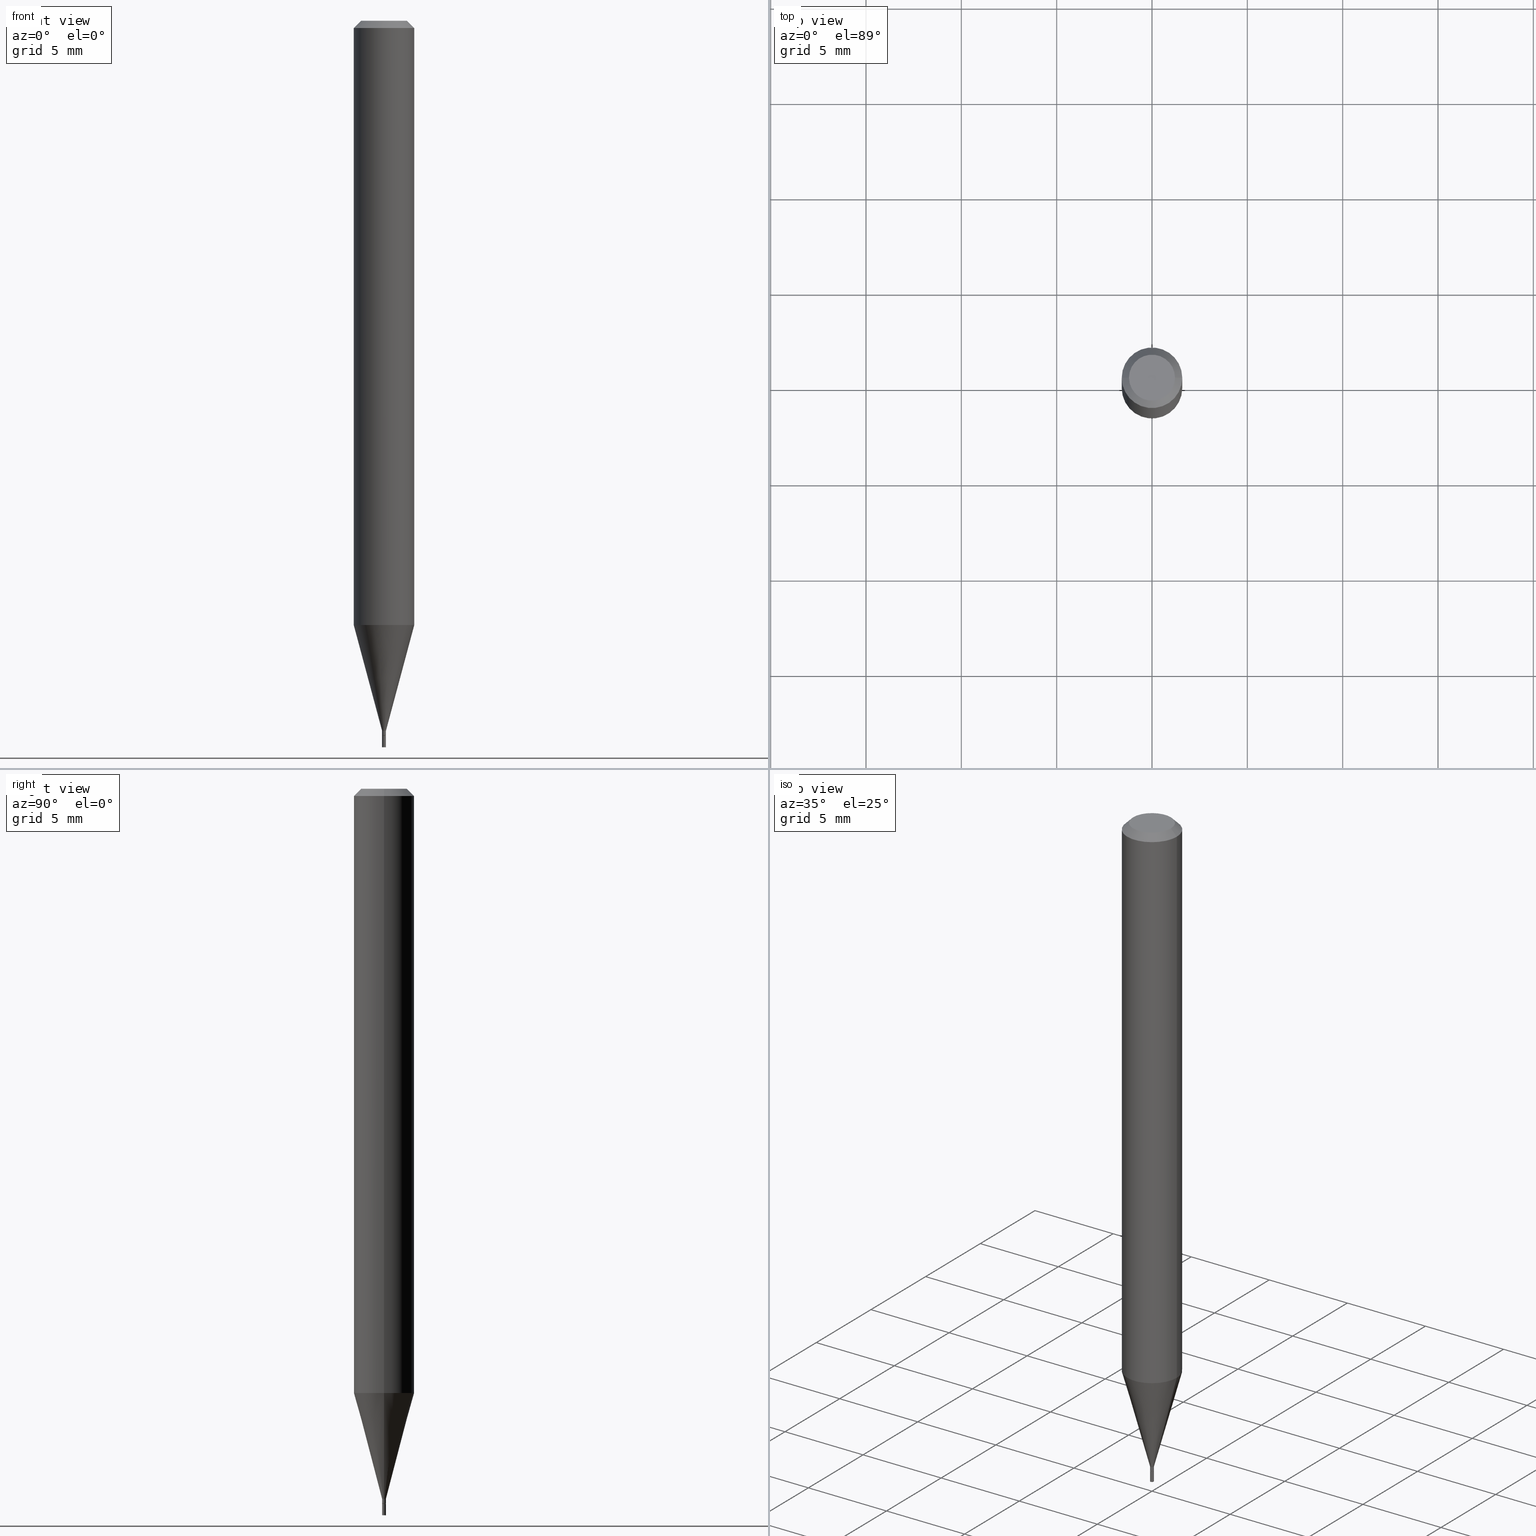
[diagram: canonical four-view strip — front | top / right | iso, engineering-drawing reading convention]
A machine part, canonical four-view strip (front | top / right | iso — engineering-drawing reading convention). The complete STEP part file that produces these views, byte-faithful:
ISO-10303-21;
HEADER;
FILE_DESCRIPTION (( 'STEP AP203' ),
    '1' );
FILE_NAME ('01159.STEP',
    '2024-03-19T23:29:55',
    ( '' ),
    ( '' ),
    'SwSTEP 2.0',
    'SolidWorks 2023',
    '' );
FILE_SCHEMA (( 'CONFIG_CONTROL_DESIGN' ));
ENDSEC;

DATA;
#1 = PLANE ( 'NONE',  #392 ) ;
#2 = DIRECTION ( 'NONE',  ( 1.000000000000000000, -6.982962677686267499E-15, 5.108144071313017768E-29 ) ) ;
#3 = ORIENTED_EDGE ( 'NONE', *, *, #244, .T. ) ;
#4 = VECTOR ( 'NONE', #389, 39.37007874015748143 ) ;
#5 = ORGANIZATION ( 'UNSPECIFIED', 'UNSPECIFIED', '' ) ;
#6 = PLANE ( 'NONE',  #154 ) ;
#7 = PRODUCT_DEFINITION_SHAPE ( 'NONE', 'NONE',  #227 ) ;
#8 = EDGE_LOOP ( 'NONE', ( #96, #397, #442, #454 ) ) ;
#9 = EDGE_CURVE ( 'NONE', #443, #170, #28, .T. ) ;
#10 = DIRECTION ( 'NONE',  ( 1.000000000000000000, -6.982962677686265922E-15, 4.876176775795935793E-29 ) ) ;
#11 = FACE_OUTER_BOUND ( 'NONE', #167, .T. ) ;
#12 = CARTESIAN_POINT ( 'NONE',  ( -0.003999999999999922888, 2.842170943040345952E-17, -1.967574036101924236E-31 ) ) ;
#13 = CARTESIAN_POINT ( 'NONE',  ( -0.003500000000000000507, -5.125908233206768515E-15, -1.475999999999999979 ) ) ;
#14 = ORIENTED_EDGE ( 'NONE', *, *, #81, .T. ) ;
#15 = APPROVAL_PERSON_ORGANIZATION ( #375, #460, #228 ) ;
#16 = CARTESIAN_POINT ( 'NONE',  ( 3.051150360636458226E-29, -4.356234076354940631E-15, -1.247675027757221056 ) ) ;
#17 = ORIENTED_EDGE ( 'NONE', *, *, #458, .F. ) ;
#18 = CARTESIAN_POINT ( 'NONE',  ( 0.000000000000000000, 0.000000000000000000, 0.000000000000000000 ) ) ;
#19 = PERSON_AND_ORGANIZATION ( #50, #5 ) ;
#20 = APPROVAL_PERSON_ORGANIZATION ( #19, #402, #381 ) ;
#21 = ORIENTED_EDGE ( 'NONE', *, *, #29, .T. ) ;
#22 = EDGE_CURVE ( 'NONE', #285, #286, #332, .T. ) ;
#23 = DATE_AND_TIME ( #420, #393 ) ;
#24 = ORIENTED_EDGE ( 'NONE', *, *, #445, .F. ) ;
#25 = DIRECTION ( 'NONE',  ( 1.000000000000000000, 0.000000000000000000, 0.000000000000000000 ) ) ;
#26 = CARTESIAN_POINT ( 'NONE',  ( 0.04749999999999999362, -4.035134999187603275E-16, -1.404502872476248897E-15 ) ) ;
#27 = CARTESIAN_POINT ( 'NONE',  ( 3.585057269867410650E-29, -5.118511642744051990E-15, -1.466000000000000192 ) ) ;
#28 = LINE ( 'NONE', #160, #30 ) ;
#29 = EDGE_CURVE ( 'NONE', #236, #191, #78, .T. ) ;
#30 = VECTOR ( 'NONE', #415, 39.37007874015748143 ) ;
#31 = ORIENTED_EDGE ( 'NONE', *, *, #164, .F. ) ;
#32 = APPROVAL_STATUS ( 'not_yet_approved' ) ;
#33 = LINE ( 'NONE', #466, #166 ) ;
#34 = CARTESIAN_POINT ( 'NONE',  ( 3.609511957929261635E-29, -5.153426456132482850E-15, -1.475999999999999979 ) ) ;
#35 = EDGE_LOOP ( 'NONE', ( #304, #353 ) ) ;
#36 = DIRECTION ( 'NONE',  ( 1.000000000000000000, -6.982962677686222534E-15, 0.000000000000000000 ) ) ;
#37 = ORIENTED_EDGE ( 'NONE', *, *, #56, .F. ) ;
#38 = DIRECTION ( 'NONE',  ( 1.000000000000000000, -6.982962677686265922E-15, 4.876176775795935793E-29 ) ) ;
#39 = CARTESIAN_POINT ( 'NONE',  ( 3.609511957929261635E-29, -5.153426456132482850E-15, -1.475999999999999979 ) ) ;
#40 = EDGE_LOOP ( 'NONE', ( #163, #385, #31, #148 ) ) ;
#41 = CIRCLE ( 'NONE', #370, 0.04749999999999999362 ) ;
#42 = VECTOR ( 'NONE', #446, 39.37007874015748143 ) ;
#43 = DIRECTION ( 'NONE',  ( -2.445468806185136877E-29, 3.491481338843145188E-15, 1.000000000000000000 ) ) ;
#44 = CARTESIAN_POINT ( 'NONE',  ( 0.000000000000000000, 0.000000000000000000, 0.000000000000000000 ) ) ;
#45 = DIRECTION ( 'NONE',  ( -2.445468806185136877E-29, 3.491481338843145188E-15, 1.000000000000000000 ) ) ;
#46 = ORIENTED_EDGE ( 'NONE', *, *, #274, .F. ) ;
#47 = CYLINDRICAL_SURFACE ( 'NONE', #133, 0.06250000000000000000 ) ;
#48 = AXIS2_PLACEMENT_3D ( 'NONE', #310, #165, #198 ) ;
#49 = DIRECTION ( 'NONE',  ( -2.445468806185136597E-29, 3.491481338843145583E-15, 1.000000000000000000 ) ) ;
#50 = PERSON ( 'UNSPECIFIED', 'UNSPECIFIED', 'UNSPECIFIED', ('UNSPECIFIED'), ('UNSPECIFIED'), ('UNSPECIFIED') ) ;
#51 = DIRECTION ( 'NONE',  ( -2.445468806185136877E-29, 3.491481338843145188E-15, 1.000000000000000000 ) ) ;
#52 = EDGE_CURVE ( 'NONE', #179, #205, #263, .T. ) ;
#53 = CIRCLE ( 'NONE', #294, 0.004000000000000000083 ) ;
#54 = CONICAL_SURFACE ( 'NONE', #308, 0.003500000000000000507, 0.7853981633974723708 ) ;
#55 = SHAPE_DEFINITION_REPRESENTATION ( #7, #226 ) ;
#56 = EDGE_CURVE ( 'NONE', #443, #362, #120, .T. ) ;
#57 = ORIENTED_EDGE ( 'NONE', *, *, #81, .F. ) ;
#58 = CALENDAR_DATE ( 2024, 19, 3 ) ;
#59 = AXIS2_PLACEMENT_3D ( 'NONE', #354, #314, #242 ) ;
#60 = LOCAL_TIME ( 19, 29, 55.00000000000000000, #187 ) ;
#61 = DIRECTION ( 'NONE',  ( 1.000000000000000000, -6.982962677686266711E-15, 0.000000000000000000 ) ) ;
#62 = ADVANCED_FACE ( 'NONE', ( #422 ), #230, .T. ) ;
#63 = DIRECTION ( 'NONE',  ( -1.000000000000000000, 6.982962677686265922E-15, -4.876176775795935793E-29 ) ) ;
#64 = CIRCLE ( 'NONE', #101, 0.04749999999999999362 ) ;
#65 = AXIS2_PLACEMENT_3D ( 'NONE', #105, #207, #36 ) ;
#66 = FACE_OUTER_BOUND ( 'NONE', #432, .T. ) ;
#67 = ORIENTED_EDGE ( 'NONE', *, *, #423, .T. ) ;
#68 = EDGE_CURVE ( 'NONE', #205, #236, #428, .T. ) ;
#69 = DIRECTION ( 'NONE',  ( -2.445468806185136597E-29, 3.491481338843145583E-15, 1.000000000000000000 ) ) ;
#70 = ORIENTED_EDGE ( 'NONE', *, *, #119, .F. ) ;
#71 = CARTESIAN_POINT ( 'NONE',  ( 0.06250000000000000000, -4.811533449433679005E-16, -0.01499999999999999944 ) ) ;
#72 = FACE_OUTER_BOUND ( 'NONE', #282, .T. ) ;
#73 = PRODUCT_DEFINITION_FORMATION_WITH_SPECIFIED_SOURCE ( 'ANY', '', #180, .NOT_KNOWN. ) ;
#74 = ORIENTED_EDGE ( 'NONE', *, *, #52, .T. ) ;
#75 = CARTESIAN_POINT ( 'NONE',  ( 0.000000000000000000, 0.000000000000000000, 0.000000000000000000 ) ) ;
#76 = ADVANCED_FACE ( 'NONE', ( #72 ), #181, .T. ) ;
#77 = LINE ( 'NONE', #83, #93 ) ;
#78 = CIRCLE ( 'NONE', #418, 0.06250000000000000000 ) ;
#79 = CARTESIAN_POINT ( 'NONE',  ( 3.608289223526169394E-29, -5.151680715463062135E-15, -1.475500000000000256 ) ) ;
#80 = DIRECTION ( 'NONE',  ( 1.000000000000000000, -6.982962677686266711E-15, 0.000000000000000000 ) ) ;
#81 = EDGE_CURVE ( 'NONE', #126, #404, #64, .T. ) ;
#82 = DIRECTION ( 'NONE',  ( 1.000000000000000000, -6.982962677686192558E-15, 0.000000000000000000 ) ) ;
#83 = CARTESIAN_POINT ( 'NONE',  ( 0.003500000000000000507, -5.177866825504383900E-15, -1.475999999999999979 ) ) ;
#84 = COORDINATED_UNIVERSAL_TIME_OFFSET ( 5, 0, .BEHIND. ) ;
#85 = DIRECTION ( 'NONE',  ( -2.445468806185136597E-29, 3.491481338843145583E-15, 1.000000000000000000 ) ) ;
#86 = PERSON_AND_ORGANIZATION_ROLE ( 'design_owner' ) ;
#87 = LOCAL_TIME ( 19, 29, 55.00000000000000000, #378 ) ;
#88 = EDGE_CURVE ( 'NONE', #404, #191, #215, .T. ) ;
#89 = DIRECTION ( 'NONE',  ( 2.438088387897960049E-29, -3.491481338843145188E-15, -1.000000000000000000 ) ) ;
#90 = ORIENTED_EDGE ( 'NONE', *, *, #267, .T. ) ;
#91 = PERSON_AND_ORGANIZATION_ROLE ( 'creator' ) ;
#92 = CONICAL_SURFACE ( 'NONE', #333, 0.003999999999999922021, 0.2617993877991499074 ) ;
#93 = VECTOR ( 'NONE', #212, 39.37007874015748143 ) ;
#94 = ADVANCED_FACE ( 'NONE', ( #449 ), #143, .T. ) ;
#95 = CARTESIAN_POINT ( 'NONE',  ( -0.004000000000000000083, 2.842170943040400803E-17, -1.967574036101962334E-31 ) ) ;
#96 = ORIENTED_EDGE ( 'NONE', *, *, #119, .T. ) ;
#97 = DIRECTION ( 'NONE',  ( -2.438088387897960049E-29, 3.491481338843145188E-15, 1.000000000000000000 ) ) ;
#98 = ORIENTED_EDGE ( 'NONE', *, *, #220, .F. ) ;
#99 = CARTESIAN_POINT ( 'NONE',  ( 3.434667962838094334E-44, -4.903795569602426839E-30, -1.404502872476251461E-15 ) ) ;
#100 = DIRECTION ( 'NONE',  ( -2.445468806185136597E-29, 3.491481338843145583E-15, 1.000000000000000000 ) ) ;
#101 = AXIS2_PLACEMENT_3D ( 'NONE', #99, #152, #186 ) ;
#102 = ADVANCED_FACE ( 'NONE', ( #11 ), #107, .F. ) ;
#103 = CC_DESIGN_SECURITY_CLASSIFICATION ( #146, ( #73 ) ) ;
#104 = DIRECTION ( 'NONE',  ( -2.445468806185136597E-29, 3.491481338843145583E-15, 1.000000000000000000 ) ) ;
#105 = CARTESIAN_POINT ( 'NONE',  ( 3.608289223526169394E-29, -5.151680715463062135E-15, -1.475500000000000256 ) ) ;
#106 = ORIENTED_EDGE ( 'NONE', *, *, #9, .T. ) ;
#107 = PLANE ( 'NONE',  #463 ) ;
#108 = LENGTH_MEASURE_WITH_UNIT ( LENGTH_MEASURE( 0.02539999999999999897 ), #439 );
#109 = ORIENTED_EDGE ( 'NONE', *, *, #201, .T. ) ;
#110 = VECTOR ( 'NONE', #363, 39.37007874015748143 ) ;
#111 = VECTOR ( 'NONE', #45, 39.37007874015748143 ) ;
#112 = CC_DESIGN_PERSON_AND_ORGANIZATION_ASSIGNMENT ( #192, #296, ( #73 ) ) ;
#113 = DIRECTION ( 'NONE',  ( -2.445468806185136597E-29, 3.491481338843145583E-15, 1.000000000000000000 ) ) ;
#114 = EDGE_LOOP ( 'NONE', ( #46, #377, #247, #144 ) ) ;
#115 = ORIENTED_EDGE ( 'NONE', *, *, #299, .T. ) ;
#116 = DIRECTION ( 'NONE',  ( 1.000000000000000000, -6.982962677686222534E-15, 0.000000000000000000 ) ) ;
#117 = CARTESIAN_POINT ( 'NONE',  ( 0.000000000000000000, 0.000000000000000000, 0.000000000000000000 ) ) ;
#118 = DIRECTION ( 'NONE',  ( -0.7071067811865806574, 2.468850131082604554E-15, -0.7071067811865142660 ) ) ;
#119 = EDGE_CURVE ( 'NONE', #179, #276, #316, .T. ) ;
#120 = CIRCLE ( 'NONE', #131, 0.003500000000000000507 ) ;
#121 = DIRECTION ( 'NONE',  ( 2.445468806185136597E-29, -3.491481338843145583E-15, -1.000000000000000000 ) ) ;
#122 = DIRECTION ( 'NONE',  ( 0.000000000000000000, 0.000000000000000000, 1.000000000000000000 ) ) ;
#123 = DATE_AND_TIME ( #452, #60 ) ;
#124 = AXIS2_PLACEMENT_3D ( 'NONE', #335, #156, #82 ) ;
#125 = EDGE_CURVE ( 'NONE', #205, #430, #153, .T. ) ;
#126 = VERTEX_POINT ( 'NONE', #26 ) ;
#127 = DIRECTION ( 'NONE',  ( 1.000000000000000000, -6.982962677686192558E-15, 0.000000000000000000 ) ) ;
#128 = DATE_AND_TIME ( #219, #200 ) ;
#129 = ORIENTED_EDGE ( 'NONE', *, *, #9, .F. ) ;
#130 = ADVANCED_FACE ( 'NONE', ( #189 ), #221, .T. ) ;
#131 = AXIS2_PLACEMENT_3D ( 'NONE', #334, #350, #127 ) ;
#132 = LINE ( 'NONE', #71, #161 ) ;
#133 = AXIS2_PLACEMENT_3D ( 'NONE', #75, #255, #284 ) ;
#134 = CYLINDRICAL_SURFACE ( 'NONE', #411, 0.004000000000000000083 ) ;
#135 = ADVANCED_FACE ( 'NONE', ( #388 ), #369, .T. ) ;
#136 = FACE_OUTER_BOUND ( 'NONE', #403, .T. ) ;
#137 = CARTESIAN_POINT ( 'NONE',  ( 0.06250000000000000000, -4.888073874380388472E-16, -0.01499999999999999944 ) ) ;
#138 = AXIS2_PLACEMENT_3D ( 'NONE', #431, #351, #281 ) ;
#139 = CARTESIAN_POINT ( 'NONE',  ( 3.585057269867410650E-29, -5.118511642744051990E-15, -1.466000000000000192 ) ) ;
#140 = EDGE_LOOP ( 'NONE', ( #57, #115, #21, #322 ) ) ;
#141 = DIRECTION ( 'NONE',  ( -2.445468806185136597E-29, 3.491481338843145583E-15, 1.000000000000000000 ) ) ;
#142 = CC_DESIGN_PERSON_AND_ORGANIZATION_ASSIGNMENT ( #346, #91, ( #227 ) ) ;
#143 = CYLINDRICAL_SURFACE ( 'NONE', #434, 0.003999999999999922888 ) ;
#144 = ORIENTED_EDGE ( 'NONE', *, *, #201, .F. ) ;
#145 = CLOSED_SHELL ( 'NONE', ( #94, #130, #196, #349, #211, #135, #62, #358, #102, #177, #324, #76 ) ) ;
#146 = SECURITY_CLASSIFICATION ( '', '', #455 ) ;
#147 =( NAMED_UNIT ( * ) SI_UNIT ( $, .STERADIAN. ) SOLID_ANGLE_UNIT ( ) );
#148 = ORIENTED_EDGE ( 'NONE', *, *, #384, .F. ) ;
#149 = APPLICATION_PROTOCOL_DEFINITION ( 'international standard', 'config_control_design', 1994, #271 ) ;
#150 = CARTESIAN_POINT ( 'NONE',  ( -0.06250000000000000000, 3.840629472727444916E-16, -0.01499999999999999944 ) ) ;
#151 = EDGE_CURVE ( 'NONE', #286, #285, #249, .T. ) ;
#152 = DIRECTION ( 'NONE',  ( -2.445468806185136597E-29, 3.491481338843145583E-15, 1.000000000000000000 ) ) ;
#153 = CIRCLE ( 'NONE', #279, 0.06250000000000000000 ) ;
#154 = AXIS2_PLACEMENT_3D ( 'NONE', #237, #280, #63 ) ;
#155 = DATE_TIME_ROLE ( 'creation_date' ) ;
#156 = DIRECTION ( 'NONE',  ( -2.445468806185136597E-29, 3.491481338843145583E-15, 1.000000000000000000 ) ) ;
#157 = CARTESIAN_POINT ( 'NONE',  ( 3.668203209277704895E-29, -5.237222008264718177E-15, -1.500000000000000222 ) ) ;
#158 = MANIFOLD_SOLID_BREP ( 'Body-Move/Copy2[2]', #145 ) ;
#159 = PERSON_AND_ORGANIZATION_ROLE ( 'design_supplier' ) ;
#160 = CARTESIAN_POINT ( 'NONE',  ( -0.003500000000000000507, -5.128557460380878927E-15, -1.475999999999999979 ) ) ;
#161 = VECTOR ( 'NONE', #204, 39.37007874015748854 ) ;
#162 = APPROVAL_DATE_TIME ( #414, #190 ) ;
#163 = ORIENTED_EDGE ( 'NONE', *, *, #151, .T. ) ;
#164 = EDGE_CURVE ( 'NONE', #288, #313, #53, .T. ) ;
#165 = DIRECTION ( 'NONE',  ( 2.445468806185136597E-29, -3.491481338843145583E-15, -1.000000000000000000 ) ) ;
#166 = VECTOR ( 'NONE', #43, 39.37007874015748143 ) ;
#167 = EDGE_LOOP ( 'NONE', ( #425, #14 ) ) ;
#168 = ADVANCED_FACE ( 'NONE', ( #357 ), #413, .F. ) ;
#169 = CARTESIAN_POINT ( 'NONE',  ( -0.004000000000000000083, -5.166902522768196481E-15, -1.500000000000000222 ) ) ;
#170 = VERTEX_POINT ( 'NONE', #386 ) ;
#171 = DESIGN_CONTEXT ( 'detailed design', #410, 'design' ) ;
#172 = DIRECTION ( 'NONE',  ( 1.000000000000000000, -6.982962677686225690E-15, 0.000000000000000000 ) ) ;
#173 = FACE_OUTER_BOUND ( 'NONE', #8, .T. ) ;
#174 = AXIS2_PLACEMENT_3D ( 'NONE', #235, #275, #61 ) ;
#175 = CONICAL_SURFACE ( 'NONE', #232, 0.06250000000000000000, 0.7853981633974952414 ) ;
#176 = DIRECTION ( 'NONE',  ( -2.445468806185136597E-29, 3.491481338843145583E-15, 1.000000000000000000 ) ) ;
#177 = ADVANCED_FACE ( 'NONE', ( #66 ), #1, .F. ) ;
#178 = CARTESIAN_POINT ( 'NONE',  ( 0.003999999999999922888, -2.793185071074452549E-17, 1.950470710318336640E-31 ) ) ;
#179 = VERTEX_POINT ( 'NONE', #394 ) ;
#180 = PRODUCT ( '01159', '01159', '', ( #336 ) ) ;
#181 = CYLINDRICAL_SURFACE ( 'NONE', #188, 0.003999999999999922888 ) ;
#182 = CYLINDRICAL_SURFACE ( 'NONE', #295, 0.004000000000000000083 ) ;
#183 = ORIENTED_EDGE ( 'NONE', *, *, #384, .T. ) ;
#184 = CIRCLE ( 'NONE', #174, 0.06250000000000000000 ) ;
#185 = EDGE_CURVE ( 'NONE', #285, #313, #429, .T. ) ;
#186 = DIRECTION ( 'NONE',  ( 1.000000000000000000, -6.982962677686267499E-15, 5.108144071313017768E-29 ) ) ;
#187 = COORDINATED_UNIVERSAL_TIME_OFFSET ( 5, 0, .BEHIND. ) ;
#188 = AXIS2_PLACEMENT_3D ( 'NONE', #323, #319, #10 ) ;
#189 = FACE_OUTER_BOUND ( 'NONE', #395, .T. ) ;
#190 = APPROVAL ( #32, 'UNSPECIFIED' ) ;
#191 = VERTEX_POINT ( 'NONE', #433 ) ;
#192 = PERSON_AND_ORGANIZATION ( #50, #5 ) ;
#193 = VERTEX_POINT ( 'NONE', #277 ) ;
#194 = AXIS2_PLACEMENT_3D ( 'NONE', #347, #303, #233 ) ;
#195 = APPROVAL_STATUS ( 'not_yet_approved' ) ;
#196 = ADVANCED_FACE ( 'NONE', ( #202 ), #239, .T. ) ;
#197 = AXIS2_PLACEMENT_3D ( 'NONE', #18, #122, #25 ) ;
#198 = DIRECTION ( 'NONE',  ( -1.000000000000000000, 6.982962677686266711E-15, 0.000000000000000000 ) ) ;
#199 = DIRECTION ( 'NONE',  ( 1.000000000000000000, -6.982962677686266711E-15, 4.876176775795935793E-29 ) ) ;
#200 = LOCAL_TIME ( 19, 29, 55.00000000000000000, #84 ) ;
#201 = EDGE_CURVE ( 'NONE', #191, #236, #184, .T. ) ;
#202 = FACE_OUTER_BOUND ( 'NONE', #140, .T. ) ;
#203 = UNCERTAINTY_MEASURE_WITH_UNIT (LENGTH_MEASURE( 1.000000000000000082E-05 ), #321, 'distance_accuracy_value', 'NONE');
#204 = DIRECTION ( 'NONE',  ( 0.7071067811865806574, -7.319954787623366486E-15, -0.7071067811865142660 ) ) ;
#205 = VERTEX_POINT ( 'NONE', #356 ) ;
#206 = DIRECTION ( 'NONE',  ( 1.000000000000000000, -6.982962677686265922E-15, 4.876176775795935793E-29 ) ) ;
#207 = DIRECTION ( 'NONE',  ( -2.445468806185136597E-29, 3.491481338843145583E-15, 1.000000000000000000 ) ) ;
#208 = EDGE_LOOP ( 'NONE', ( #3, #67, #70, #24 ) ) ;
#209 = FACE_OUTER_BOUND ( 'NONE', #40, .T. ) ;
#210 = LINE ( 'NONE', #412, #42 ) ;
#211 = ADVANCED_FACE ( 'NONE', ( #173 ), #92, .T. ) ;
#212 = DIRECTION ( 'NONE',  ( 0.7071067811865645591, -2.468850131082435343E-15, 0.7071067811865304753 ) ) ;
#213 = VECTOR ( 'NONE', #51, 39.37007874015748143 ) ;
#214 = DIRECTION ( 'NONE',  ( 1.000000000000000000, -6.982962677686332975E-15, 0.000000000000000000 ) ) ;
#215 = LINE ( 'NONE', #150, #400 ) ;
#216 = DIRECTION ( 'NONE',  ( 0.2588190451025211836, 1.565188264969622559E-15, 0.9659258262890679791 ) ) ;
#217 = CARTESIAN_POINT ( 'NONE',  ( 3.668203209277705088E-31, -5.237222008264718399E-17, -0.01499999999999999944 ) ) ;
#218 = DIRECTION ( 'NONE',  ( 1.000000000000000000, -6.982962677686332975E-15, 0.000000000000000000 ) ) ;
#219 = CALENDAR_DATE ( 2024, 19, 3 ) ;
#220 = EDGE_CURVE ( 'NONE', #404, #126, #41, .T. ) ;
#221 = CONICAL_SURFACE ( 'NONE', #124, 0.003500000000000000507, 0.7853981633974723708 ) ;
#222 = APPROVAL_PERSON_ORGANIZATION ( #459, #190, #223 ) ;
#223 = APPROVAL_ROLE ( '' ) ;
#224 = DIRECTION ( 'NONE',  ( -1.000000000000000000, 6.982962677686265922E-15, -4.876176775795935793E-29 ) ) ;
#225 = ORIENTED_EDGE ( 'NONE', *, *, #371, .T. ) ;
#226 = ADVANCED_BREP_SHAPE_REPRESENTATION ( '01159', ( #309, #158, #197 ), #327 ) ;
#227 = PRODUCT_DEFINITION ( 'UNKNOWN', '', #73, #171 ) ;
#228 = APPROVAL_ROLE ( '' ) ;
#229 = DIRECTION ( 'NONE',  ( 1.000000000000000000, -6.982962677686332975E-15, 0.000000000000000000 ) ) ;
#230 = CYLINDRICAL_SURFACE ( 'NONE', #194, 0.06250000000000000000 ) ;
#231 = DATE_AND_TIME ( #343, #300 ) ;
#232 = AXIS2_PLACEMENT_3D ( 'NONE', #217, #121, #448 ) ;
#233 = DIRECTION ( 'NONE',  ( 1.000000000000000000, -6.982962677686266711E-15, 4.876176775795935793E-29 ) ) ;
#234 = ORIENTED_EDGE ( 'NONE', *, *, #68, .F. ) ;
#235 = CARTESIAN_POINT ( 'NONE',  ( 3.668203209277705088E-31, -5.237222008264718399E-17, -0.01499999999999999944 ) ) ;
#236 = VERTEX_POINT ( 'NONE', #137 ) ;
#237 = CARTESIAN_POINT ( 'NONE',  ( 2.793185071078116438E-17, 0.003999999999994847087, -1.475999999999999979 ) ) ;
#238 = ADVANCED_FACE ( 'NONE', ( #136 ), #6, .F. ) ;
#239 = CONICAL_SURFACE ( 'NONE', #48, 0.06250000000000000000, 0.7853981633974952414 ) ;
#240 = DIRECTION ( 'NONE',  ( 1.000000000000000000, -6.982962677686265922E-15, 4.876176775795935793E-29 ) ) ;
#241 = ORIENTED_EDGE ( 'NONE', *, *, #391, .F. ) ;
#242 = DIRECTION ( 'NONE',  ( 1.000000000000000000, -6.982962677686225690E-15, 0.000000000000000000 ) ) ;
#243 = DIRECTION ( 'NONE',  ( 1.000000000000000000, -6.982962677686192558E-15, 0.000000000000000000 ) ) ;
#244 = EDGE_CURVE ( 'NONE', #193, #170, #261, .T. ) ;
#245 = DIRECTION ( 'NONE',  ( -2.445468806185136597E-29, 3.491481338843145583E-15, 1.000000000000000000 ) ) ;
#246 = CARTESIAN_POINT ( 'NONE',  ( -0.003999999999999922021, -4.501117399909262592E-15, -1.466000000000000192 ) ) ;
#247 = ORIENTED_EDGE ( 'NONE', *, *, #68, .T. ) ;
#248 =( NAMED_UNIT ( * ) PLANE_ANGLE_UNIT ( ) SI_UNIT ( $, .RADIAN. ) );
#249 = CIRCLE ( 'NONE', #382, 0.004000000000000000083 ) ;
#250 = DIRECTION ( 'NONE',  ( 1.000000000000000000, -6.982962677686270655E-15, 0.000000000000000000 ) ) ;
#251 = CARTESIAN_POINT ( 'NONE',  ( 3.584916967085606921E-29, -5.356492647442320375E-15, -1.500000000000000222 ) ) ;
#252 = DIRECTION ( 'NONE',  ( -2.445468806185136597E-29, 3.491481338843145583E-15, 1.000000000000000000 ) ) ;
#253 = ORIENTED_EDGE ( 'NONE', *, *, #264, .T. ) ;
#254 = ORIENTED_EDGE ( 'NONE', *, *, #125, .T. ) ;
#255 = DIRECTION ( 'NONE',  ( -2.445468806185136597E-29, 3.491481338843145583E-15, 1.000000000000000000 ) ) ;
#256 = ORIENTED_EDGE ( 'NONE', *, *, #22, .T. ) ;
#257 = CARTESIAN_POINT ( 'NONE',  ( -0.06250000000000000000, -3.912144866504878015E-15, -1.247675027757221056 ) ) ;
#258 = CLOSED_SHELL ( 'NONE', ( #438, #168, #291, #238 ) ) ;
#259 = CC_DESIGN_APPROVAL ( #460, ( #146 ) ) ;
#260 = CARTESIAN_POINT ( 'NONE',  ( 3.668203209277705088E-31, -5.237222008264718399E-17, -0.01499999999999999944 ) ) ;
#261 = CIRCLE ( 'NONE', #65, 0.003999999999999923755 ) ;
#262 = CARTESIAN_POINT ( 'NONE',  ( 3.609511957929261635E-29, -5.153426456132482850E-15, -1.475999999999999979 ) ) ;
#263 = LINE ( 'NONE', #451, #427 ) ;
#264 = EDGE_CURVE ( 'NONE', #362, #443, #376, .T. ) ;
#265 = PERSON_AND_ORGANIZATION_ROLE ( 'classification_officer' ) ;
#266 = APPLICATION_PROTOCOL_DEFINITION ( 'international standard', 'config_control_design', 1994, #410 ) ;
#267 = EDGE_CURVE ( 'NONE', #276, #179, #383, .T. ) ;
#268 = ORIENTED_EDGE ( 'NONE', *, *, #29, .F. ) ;
#269 = EDGE_LOOP ( 'NONE', ( #437, #256, #183, #311 ) ) ;
#270 = DATE_TIME_ROLE ( 'classification_date' ) ;
#271 = APPLICATION_CONTEXT ( 'configuration controlled 3d designs of mechanical parts and assemblies' ) ;
#272 = CC_DESIGN_APPROVAL ( #402, ( #227 ) ) ;
#273 = CARTESIAN_POINT ( 'NONE',  ( -0.004000000000000000083, -5.166902522768196481E-15, -1.475999999999999979 ) ) ;
#274 = EDGE_CURVE ( 'NONE', #430, #191, #33, .T. ) ;
#275 = DIRECTION ( 'NONE',  ( -2.445468806185136597E-29, 3.491481338843145583E-15, 1.000000000000000000 ) ) ;
#276 = VERTEX_POINT ( 'NONE', #246 ) ;
#277 = CARTESIAN_POINT ( 'NONE',  ( 0.003999999999999923755, -5.179612566173805404E-15, -1.475500000000000256 ) ) ;
#278 = ORIENTED_EDGE ( 'NONE', *, *, #56, .T. ) ;
#279 = AXIS2_PLACEMENT_3D ( 'NONE', #16, #379, #250 ) ;
#280 = DIRECTION ( 'NONE',  ( 2.438088387897960049E-29, -3.491481338843145188E-15, -1.000000000000000000 ) ) ;
#281 = DIRECTION ( 'NONE',  ( 1.000000000000000000, -6.982962677686225690E-15, 0.000000000000000000 ) ) ;
#282 = EDGE_LOOP ( 'NONE', ( #340, #225, #408, #387 ) ) ;
#283 = ORIENTED_EDGE ( 'NONE', *, *, #264, .F. ) ;
#284 = DIRECTION ( 'NONE',  ( 1.000000000000000000, -6.982962677686266711E-15, 4.876176775795935793E-29 ) ) ;
#285 = VERTEX_POINT ( 'NONE', #169 ) ;
#286 = VERTEX_POINT ( 'NONE', #312 ) ;
#287 = DIRECTION ( 'NONE',  ( 1.000000000000000000, -6.982962677686192558E-15, 0.000000000000000000 ) ) ;
#288 = VERTEX_POINT ( 'NONE', #396 ) ;
#289 = AXIS2_PLACEMENT_3D ( 'NONE', #79, #49, #116 ) ;
#290 = EDGE_LOOP ( 'NONE', ( #426, #98, #419, #109 ) ) ;
#291 = ADVANCED_FACE ( 'NONE', ( #398 ), #134, .T. ) ;
#292 = CARTESIAN_POINT ( 'NONE',  ( 3.668203209277704895E-29, -5.237222008264718177E-15, -1.500000000000000222 ) ) ;
#293 = FACE_OUTER_BOUND ( 'NONE', #290, .T. ) ;
#294 = AXIS2_PLACEMENT_3D ( 'NONE', #34, #141, #229 ) ;
#295 = AXIS2_PLACEMENT_3D ( 'NONE', #117, #176, #320 ) ;
#296 = PERSON_AND_ORGANIZATION_ROLE ( 'creator' ) ;
#297 = DIRECTION ( 'NONE',  ( -2.445468806185136597E-29, 3.491481338843145583E-15, 1.000000000000000000 ) ) ;
#298 = COORDINATED_UNIVERSAL_TIME_OFFSET ( 5, 0, .BEHIND. ) ;
#299 = EDGE_CURVE ( 'NONE', #126, #236, #132, .T. ) ;
#300 = LOCAL_TIME ( 19, 29, 55.00000000000000000, #339 ) ;
#301 = CC_DESIGN_PERSON_AND_ORGANIZATION_ASSIGNMENT ( #453, #159, ( #73 ) ) ;
#302 = APPROVAL_STATUS ( 'not_yet_approved' ) ;
#303 = DIRECTION ( 'NONE',  ( -2.445468806185136597E-29, 3.491481338843145583E-15, 1.000000000000000000 ) ) ;
#304 = ORIENTED_EDGE ( 'NONE', *, *, #151, .F. ) ;
#305 = DIRECTION ( 'NONE',  ( -0.2588190451025211836, 5.211531920934547886E-15, 0.9659258262890679791 ) ) ;
#306 = EDGE_CURVE ( 'NONE', #276, #430, #360, .T. ) ;
#307 = AXIS2_PLACEMENT_3D ( 'NONE', #251, #315, #240 ) ;
#308 = AXIS2_PLACEMENT_3D ( 'NONE', #368, #252, #287 ) ;
#309 = MANIFOLD_SOLID_BREP ( 'Body-Move/Copy2[1]', #258 ) ;
#310 = CARTESIAN_POINT ( 'NONE',  ( 3.668203209277705088E-31, -5.237222008264718399E-17, -0.01499999999999999944 ) ) ;
#311 = ORIENTED_EDGE ( 'NONE', *, *, #417, .F. ) ;
#312 = CARTESIAN_POINT ( 'NONE',  ( 0.004000000000000000083, -5.265153858975463812E-15, -1.500000000000000222 ) ) ;
#313 = VERTEX_POINT ( 'NONE', #273 ) ;
#314 = DIRECTION ( 'NONE',  ( -2.445468806185136597E-29, 3.491481338843145583E-15, 1.000000000000000000 ) ) ;
#315 = DIRECTION ( 'NONE',  ( -2.438088387897960049E-29, 3.491481338843145188E-15, 1.000000000000000000 ) ) ;
#316 = CIRCLE ( 'NONE', #344, 0.003999999999999922021 ) ;
#317 = CARTESIAN_POINT ( 'NONE',  ( 3.434667962838094334E-44, -4.903795569602426839E-30, -1.404502872476251461E-15 ) ) ;
#318 = CC_DESIGN_DATE_AND_TIME_ASSIGNMENT ( #128, #270, ( #146 ) ) ;
#319 = DIRECTION ( 'NONE',  ( -2.445468806185136597E-29, 3.491481338843145583E-15, 1.000000000000000000 ) ) ;
#320 = DIRECTION ( 'NONE',  ( 1.000000000000000000, -6.982962677686266711E-15, 4.876176775795935793E-29 ) ) ;
#321 =( CONVERSION_BASED_UNIT ( 'INCH', #108 ) LENGTH_UNIT ( ) NAMED_UNIT ( #352 ) );
#322 = ORIENTED_EDGE ( 'NONE', *, *, #88, .F. ) ;
#323 = CARTESIAN_POINT ( 'NONE',  ( 0.000000000000000000, 0.000000000000000000, 0.000000000000000000 ) ) ;
#324 = ADVANCED_FACE ( 'NONE', ( #461 ), #54, .T. ) ;
#325 = ORIENTED_EDGE ( 'NONE', *, *, #417, .T. ) ;
#326 = LINE ( 'NONE', #178, #111 ) ;
#327 =( GEOMETRIC_REPRESENTATION_CONTEXT ( 3 ) GLOBAL_UNCERTAINTY_ASSIGNED_CONTEXT ( ( #203 ) ) GLOBAL_UNIT_ASSIGNED_CONTEXT ( ( #321, #248, #147 ) ) REPRESENTATION_CONTEXT ( 'NONE', 'WORKASPACE' ) );
#328 = DIRECTION ( 'NONE',  ( 1.000000000000000000, -6.982962677686332975E-15, 0.000000000000000000 ) ) ;
#329 = DIRECTION ( 'NONE',  ( -2.445468806185136597E-29, 3.491481338843145583E-15, 1.000000000000000000 ) ) ;
#330 = PERSON_AND_ORGANIZATION ( #50, #5 ) ;
#331 = PRODUCT_RELATED_PRODUCT_CATEGORY ( 'detail', '', ( #180 ) ) ;
#332 = CIRCLE ( 'NONE', #409, 0.004000000000000000083 ) ;
#333 = AXIS2_PLACEMENT_3D ( 'NONE', #139, #359, #172 ) ;
#334 = CARTESIAN_POINT ( 'NONE',  ( 3.609511957929261635E-29, -5.153426456132482850E-15, -1.475999999999999979 ) ) ;
#335 = CARTESIAN_POINT ( 'NONE',  ( 3.609511957929261635E-29, -5.153426456132482850E-15, -1.475999999999999979 ) ) ;
#336 = MECHANICAL_CONTEXT ( 'NONE', #271, 'mechanical' ) ;
#337 = DIRECTION ( 'NONE',  ( 1.000000000000000000, -6.982962677686225690E-15, 0.000000000000000000 ) ) ;
#338 = ORIENTED_EDGE ( 'NONE', *, *, #244, .F. ) ;
#339 = COORDINATED_UNIVERSAL_TIME_OFFSET ( 5, 0, .BEHIND. ) ;
#340 = ORIENTED_EDGE ( 'NONE', *, *, #423, .F. ) ;
#341 = CARTESIAN_POINT ( 'NONE',  ( 3.316907271900976096E-16, 0.04749999999999999362, -8.680967998331751761E-16 ) ) ;
#342 = EDGE_LOOP ( 'NONE', ( #129, #278, #374, #348 ) ) ;
#343 = CALENDAR_DATE ( 2024, 19, 3 ) ;
#344 = AXIS2_PLACEMENT_3D ( 'NONE', #27, #421, #337 ) ;
#345 = CIRCLE ( 'NONE', #450, 0.06250000000000000000 ) ;
#346 = PERSON_AND_ORGANIZATION ( #50, #5 ) ;
#347 = CARTESIAN_POINT ( 'NONE',  ( 0.000000000000000000, 0.000000000000000000, 0.000000000000000000 ) ) ;
#348 = ORIENTED_EDGE ( 'NONE', *, *, #371, .F. ) ;
#349 = ADVANCED_FACE ( 'NONE', ( #405 ), #47, .T. ) ;
#350 = DIRECTION ( 'NONE',  ( -2.445468806185136597E-29, 3.491481338843145583E-15, 1.000000000000000000 ) ) ;
#351 = DIRECTION ( 'NONE',  ( -2.445468806185136597E-29, 3.491481338843145583E-15, 1.000000000000000000 ) ) ;
#352 = DIMENSIONAL_EXPONENTS ( 1.000000000000000000, 0.000000000000000000, 0.000000000000000000, 0.000000000000000000, 0.000000000000000000, 0.000000000000000000, 0.000000000000000000 ) ;
#353 = ORIENTED_EDGE ( 'NONE', *, *, #22, .F. ) ;
#354 = CARTESIAN_POINT ( 'NONE',  ( 3.585057269867410650E-29, -5.118511642744051990E-15, -1.466000000000000192 ) ) ;
#355 = CC_DESIGN_APPROVAL ( #190, ( #73 ) ) ;
#356 = CARTESIAN_POINT ( 'NONE',  ( 0.06250000000000000000, -4.792669243710331512E-15, -1.247675027757221056 ) ) ;
#357 = FACE_OUTER_BOUND ( 'NONE', #35, .T. ) ;
#358 = ADVANCED_FACE ( 'NONE', ( #293 ), #175, .T. ) ;
#359 = DIRECTION ( 'NONE',  ( -2.445468806185136597E-29, 3.491481338843145583E-15, 1.000000000000000000 ) ) ;
#360 = LINE ( 'NONE', #390, #456 ) ;
#361 = AXIS2_PLACEMENT_3D ( 'NONE', #262, #113, #214 ) ;
#362 = VERTEX_POINT ( 'NONE', #372 ) ;
#363 = DIRECTION ( 'NONE',  ( -2.445468806185136877E-29, 3.491481338843145188E-15, 1.000000000000000000 ) ) ;
#364 = ORIENTED_EDGE ( 'NONE', *, *, #274, .T. ) ;
#365 = DIRECTION ( 'NONE',  ( -2.445468806185136597E-29, 3.491481338843145583E-15, 1.000000000000000000 ) ) ;
#366 = ORIENTED_EDGE ( 'NONE', *, *, #306, .F. ) ;
#367 = CC_DESIGN_DATE_AND_TIME_ASSIGNMENT ( #231, #155, ( #227 ) ) ;
#368 = CARTESIAN_POINT ( 'NONE',  ( 3.609511957929261635E-29, -5.153426456132482850E-15, -1.475999999999999979 ) ) ;
#369 = CONICAL_SURFACE ( 'NONE', #59, 0.003999999999999922021, 0.2617993877991499074 ) ;
#370 = AXIS2_PLACEMENT_3D ( 'NONE', #317, #100, #2 ) ;
#371 = EDGE_CURVE ( 'NONE', #170, #193, #440, .T. ) ;
#372 = CARTESIAN_POINT ( 'NONE',  ( 0.003500000000000000507, -5.177866825504383900E-15, -1.475999999999999979 ) ) ;
#373 = DIRECTION ( 'NONE',  ( 1.000000000000000000, -6.982962677686270655E-15, 0.000000000000000000 ) ) ;
#374 = ORIENTED_EDGE ( 'NONE', *, *, #458, .T. ) ;
#375 = PERSON_AND_ORGANIZATION ( #50, #5 ) ;
#376 = CIRCLE ( 'NONE', #401, 0.003500000000000000507 ) ;
#377 = ORIENTED_EDGE ( 'NONE', *, *, #391, .T. ) ;
#378 = COORDINATED_UNIVERSAL_TIME_OFFSET ( 5, 0, .BEHIND. ) ;
#379 = DIRECTION ( 'NONE',  ( -2.445468806185136597E-29, 3.491481338843145583E-15, 1.000000000000000000 ) ) ;
#380 = EDGE_LOOP ( 'NONE', ( #366, #90, #74, #241 ) ) ;
#381 = APPROVAL_ROLE ( '' ) ;
#382 = AXIS2_PLACEMENT_3D ( 'NONE', #292, #329, #218 ) ;
#383 = CIRCLE ( 'NONE', #138, 0.003999999999999922021 ) ;
#384 = EDGE_CURVE ( 'NONE', #286, #288, #210, .T. ) ;
#385 = ORIENTED_EDGE ( 'NONE', *, *, #185, .T. ) ;
#386 = CARTESIAN_POINT ( 'NONE',  ( -0.003999999999999923755, -5.123259006032658103E-15, -1.475500000000000256 ) ) ;
#387 = ORIENTED_EDGE ( 'NONE', *, *, #267, .F. ) ;
#388 = FACE_OUTER_BOUND ( 'NONE', #380, .T. ) ;
#389 = DIRECTION ( 'NONE',  ( -2.445468806185136877E-29, 3.491481338843145188E-15, 1.000000000000000000 ) ) ;
#390 = CARTESIAN_POINT ( 'NONE',  ( -0.003999999999999922021, -5.090089933313648746E-15, -1.466000000000000192 ) ) ;
#391 = EDGE_CURVE ( 'NONE', #430, #205, #345, .T. ) ;
#392 = AXIS2_PLACEMENT_3D ( 'NONE', #39, #97, #38 ) ;
#393 = LOCAL_TIME ( 19, 29, 55.00000000000000000, #298 ) ;
#394 = CARTESIAN_POINT ( 'NONE',  ( 0.003999999999999922021, -5.146443493454796047E-15, -1.466000000000000192 ) ) ;
#395 = EDGE_LOOP ( 'NONE', ( #253, #106, #338, #17 ) ) ;
#396 = CARTESIAN_POINT ( 'NONE',  ( 0.004000000000000000083, -5.181358306843227696E-15, -1.475999999999999979 ) ) ;
#397 = ORIENTED_EDGE ( 'NONE', *, *, #306, .T. ) ;
#398 = FACE_OUTER_BOUND ( 'NONE', #269, .T. ) ;
#399 = ORIENTED_EDGE ( 'NONE', *, *, #164, .T. ) ;
#400 = VECTOR ( 'NONE', #118, 39.37007874015748854 ) ;
#401 = AXIS2_PLACEMENT_3D ( 'NONE', #435, #104, #243 ) ;
#402 = APPROVAL ( #302, 'UNSPECIFIED' ) ;
#403 = EDGE_LOOP ( 'NONE', ( #399, #325 ) ) ;
#404 = VERTEX_POINT ( 'NONE', #441 ) ;
#405 = FACE_OUTER_BOUND ( 'NONE', #462, .T. ) ;
#406 = CARTESIAN_POINT ( 'NONE',  ( 3.051150360636458226E-29, -4.356234076354940631E-15, -1.247675027757221056 ) ) ;
#407 = CC_DESIGN_PERSON_AND_ORGANIZATION_ASSIGNMENT ( #330, #86, ( #180 ) ) ;
#408 = ORIENTED_EDGE ( 'NONE', *, *, #445, .T. ) ;
#409 = AXIS2_PLACEMENT_3D ( 'NONE', #157, #85, #328 ) ;
#410 = APPLICATION_CONTEXT ( 'configuration controlled 3d designs of mechanical parts and assemblies' ) ;
#411 = AXIS2_PLACEMENT_3D ( 'NONE', #436, #69, #199 ) ;
#412 = CARTESIAN_POINT ( 'NONE',  ( 0.004000000000000000083, -2.793185071074506783E-17, 1.950470710318374300E-31 ) ) ;
#413 = PLANE ( 'NONE',  #307 ) ;
#414 = DATE_AND_TIME ( #58, #87 ) ;
#415 = DIRECTION ( 'NONE',  ( -0.7071067811865645591, 7.493145998870415691E-15, 0.7071067811865304753 ) ) ;
#416 = APPROVAL_DATE_TIME ( #123, #402 ) ;
#417 = EDGE_CURVE ( 'NONE', #313, #288, #464, .T. ) ;
#418 = AXIS2_PLACEMENT_3D ( 'NONE', #260, #297, #80 ) ;
#419 = ORIENTED_EDGE ( 'NONE', *, *, #88, .T. ) ;
#420 = CALENDAR_DATE ( 2024, 19, 3 ) ;
#421 = DIRECTION ( 'NONE',  ( -2.445468806185136597E-29, 3.491481338843145583E-15, 1.000000000000000000 ) ) ;
#422 = FACE_OUTER_BOUND ( 'NONE', #114, .T. ) ;
#423 = EDGE_CURVE ( 'NONE', #170, #276, #444, .T. ) ;
#424 = PERSON_AND_ORGANIZATION ( #50, #5 ) ;
#425 = ORIENTED_EDGE ( 'NONE', *, *, #220, .T. ) ;
#426 = ORIENTED_EDGE ( 'NONE', *, *, #299, .F. ) ;
#427 = VECTOR ( 'NONE', #216, 39.37007874015748854 ) ;
#428 = LINE ( 'NONE', #465, #4 ) ;
#429 = LINE ( 'NONE', #95, #110 ) ;
#430 = VERTEX_POINT ( 'NONE', #257 ) ;
#431 = CARTESIAN_POINT ( 'NONE',  ( 3.585057269867410650E-29, -5.118511642744051990E-15, -1.466000000000000192 ) ) ;
#432 = EDGE_LOOP ( 'NONE', ( #283, #37 ) ) ;
#433 = CARTESIAN_POINT ( 'NONE',  ( -0.06250000000000000000, -1.760213938368731436E-15, -0.01499999999999999944 ) ) ;
#434 = AXIS2_PLACEMENT_3D ( 'NONE', #44, #245, #206 ) ;
#435 = CARTESIAN_POINT ( 'NONE',  ( 3.609511957929261635E-29, -5.153426456132482850E-15, -1.475999999999999979 ) ) ;
#436 = CARTESIAN_POINT ( 'NONE',  ( 0.000000000000000000, 0.000000000000000000, 0.000000000000000000 ) ) ;
#437 = ORIENTED_EDGE ( 'NONE', *, *, #185, .F. ) ;
#438 = ADVANCED_FACE ( 'NONE', ( #209 ), #182, .T. ) ;
#439 =( LENGTH_UNIT ( ) NAMED_UNIT ( * ) SI_UNIT ( $, .METRE. ) );
#440 = CIRCLE ( 'NONE', #289, 0.003999999999999923755 ) ;
#441 = CARTESIAN_POINT ( 'NONE',  ( -0.04749999999999999362, 3.578768372314186347E-16, -1.404502872476254025E-15 ) ) ;
#442 = ORIENTED_EDGE ( 'NONE', *, *, #125, .F. ) ;
#443 = VERTEX_POINT ( 'NONE', #13 ) ;
#444 = LINE ( 'NONE', #12, #213 ) ;
#445 = EDGE_CURVE ( 'NONE', #193, #179, #326, .T. ) ;
#446 = DIRECTION ( 'NONE',  ( -2.445468806185136877E-29, 3.491481338843145188E-15, 1.000000000000000000 ) ) ;
#447 = CC_DESIGN_PERSON_AND_ORGANIZATION_ASSIGNMENT ( #424, #265, ( #146 ) ) ;
#448 = DIRECTION ( 'NONE',  ( -1.000000000000000000, 6.982962677686266711E-15, 0.000000000000000000 ) ) ;
#449 = FACE_OUTER_BOUND ( 'NONE', #208, .T. ) ;
#450 = AXIS2_PLACEMENT_3D ( 'NONE', #406, #365, #373 ) ;
#451 = CARTESIAN_POINT ( 'NONE',  ( 0.003999999999999922021, -5.146443493454796047E-15, -1.466000000000000192 ) ) ;
#452 = CALENDAR_DATE ( 2024, 19, 3 ) ;
#453 = PERSON_AND_ORGANIZATION ( #50, #5 ) ;
#454 = ORIENTED_EDGE ( 'NONE', *, *, #52, .F. ) ;
#455 = SECURITY_CLASSIFICATION_LEVEL ( 'unclassified' ) ;
#456 = VECTOR ( 'NONE', #305, 39.37007874015748854 ) ;
#457 = APPROVAL_DATE_TIME ( #23, #460 ) ;
#458 = EDGE_CURVE ( 'NONE', #362, #193, #77, .T. ) ;
#459 = PERSON_AND_ORGANIZATION ( #50, #5 ) ;
#460 = APPROVAL ( #195, 'UNSPECIFIED' ) ;
#461 = FACE_OUTER_BOUND ( 'NONE', #342, .T. ) ;
#462 = EDGE_LOOP ( 'NONE', ( #254, #364, #268, #234 ) ) ;
#463 = AXIS2_PLACEMENT_3D ( 'NONE', #341, #89, #224 ) ;
#464 = CIRCLE ( 'NONE', #361, 0.004000000000000000083 ) ;
#465 = CARTESIAN_POINT ( 'NONE',  ( 0.06250000000000000000, -4.364351673553916694E-16, 3.047610484872459871E-30 ) ) ;
#466 = CARTESIAN_POINT ( 'NONE',  ( -0.06250000000000000000, 4.440892098500626162E-16, -3.074334431409316114E-30 ) ) ;
ENDSEC;
END-ISO-10303-21;
